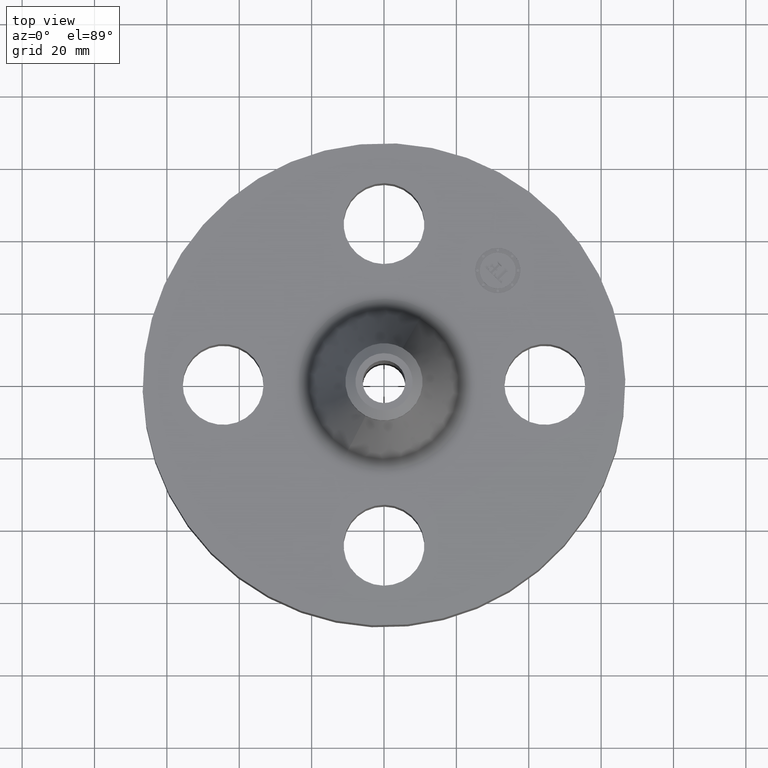
[diagram: clean part render]
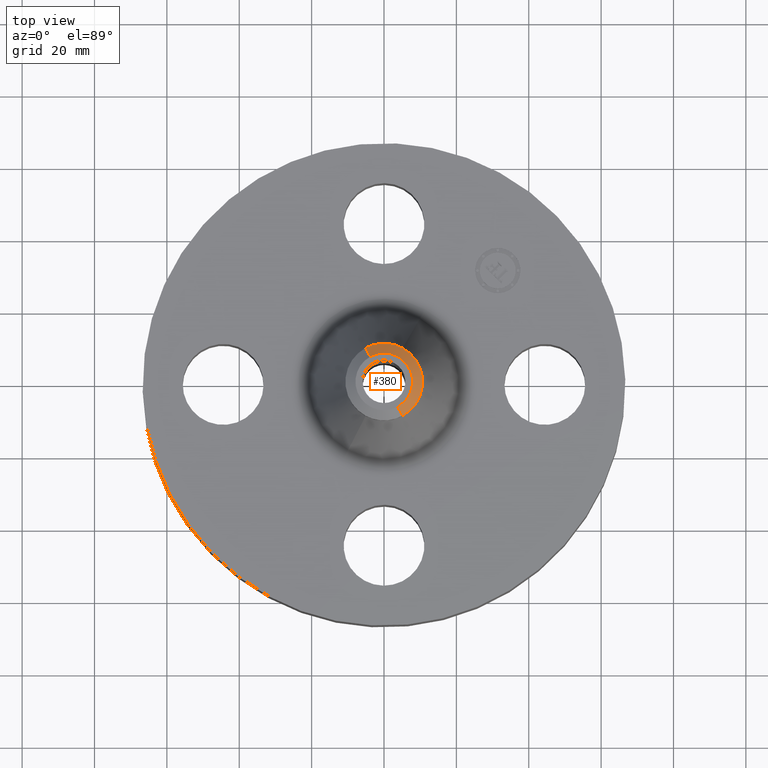
[diagram: same view with one face highlighted and labeled with its STEP entity id]
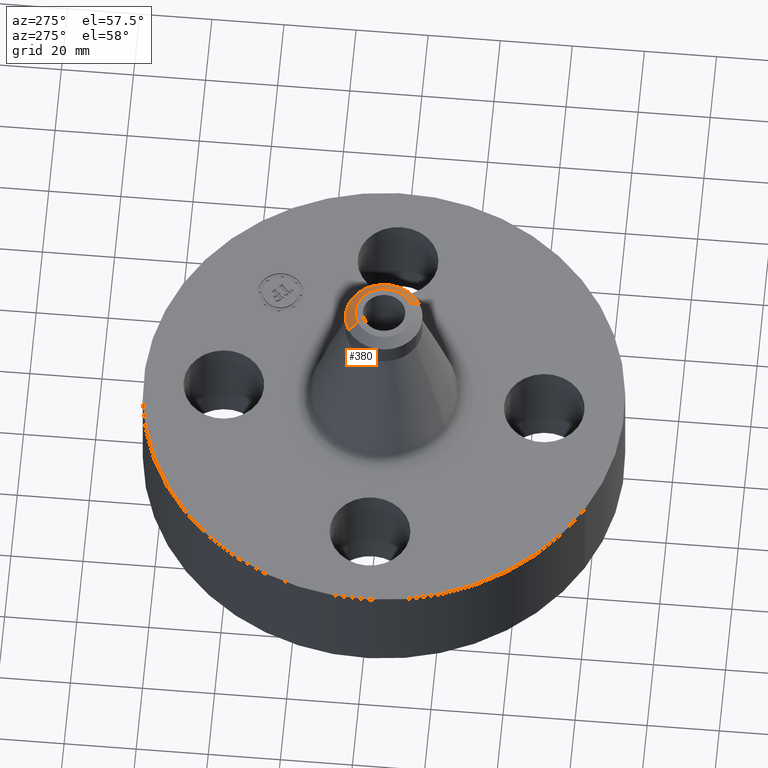
[diagram: same view with one face highlighted and labeled with its STEP entity id]
A machine part, top view. The second image highlights one B-rep face of the part: STEP entity #380.
A second angle (auxiliary view) of the same face is appended — the face is thin or edge-on in the first view.
In plain terms, the highlighted conical surface has half-angle 52.5 deg.
Its self-contained STEP definition (entity closure, byte-faithful):
#270=AXIS2_PLACEMENT_3D('Circle Axis2P3D',#268,#269,$) ;
#297=AXIS2_PLACEMENT_3D('Circle Axis2P3D',#295,#296,$) ;
#311=AXIS2_PLACEMENT_3D('Cone Axis2P3D',#308,#309,#310) ;
#347=AXIS2_PLACEMENT_3D('Circle Axis2P3D',#345,#346,$) ;
#265=CARTESIAN_POINT('Vertex',(0.201358726215,0.368584675995,2.79616197414)) ;
#268=CARTESIAN_POINT('Axis2P3D Location',(0.,0.,2.79616197414)) ;
#272=CARTESIAN_POINT('Vertex',(0.201358726215,-0.368584675995,2.79616197414)) ;
#292=CARTESIAN_POINT('Vertex',(-0.201358726215,0.368584675995,2.79616197414)) ;
#295=CARTESIAN_POINT('Axis2P3D Location',(0.,0.,2.79616197414)) ;
#308=CARTESIAN_POINT('Axis2P3D Location',(0.,0.,2.88000000001)) ;
#313=CARTESIAN_POINT('Line Origine',(0.17516774679,-0.32064240974,2.83808098708)) ;
#317=CARTESIAN_POINT('Vertex',(0.148976767366,-0.272700143485,2.88000000001)) ;
#324=CARTESIAN_POINT('Vertex',(-0.148976767366,0.272700143485,2.88000000001)) ;
#327=CARTESIAN_POINT('Line Origine',(-0.17516774679,0.32064240974,2.83808098708)) ;
#345=CARTESIAN_POINT('Axis2P3D Location',(0.,0.,2.88000000001)) ;
#269=DIRECTION('Axis2P3D Direction',(0.,0.,-0.0393700787402)) ;
#296=DIRECTION('Axis2P3D Direction',(0.,0.,-0.0393700787402)) ;
#309=DIRECTION('Axis2P3D Direction',(-0.,-0.,-0.0393700787402)) ;
#310=DIRECTION('Axis2P3D XDirection',(-0.0188750212049,0.0345504945626,0.)) ;
#314=DIRECTION('Vector Direction',(0.014974561121,-0.02741075027,-0.023966985394)) ;
#328=DIRECTION('Vector Direction',(-0.014974561121,0.02741075027,-0.023966985394)) ;
#346=DIRECTION('Axis2P3D Direction',(0.,0.,-0.0393700787402)) ;
#315=VECTOR('Line Direction',#314,0.0393700787402) ;
#329=VECTOR('Line Direction',#328,0.0393700787402) ;
#374=ORIENTED_EDGE('',*,*,#331,.F.) ;
#375=ORIENTED_EDGE('',*,*,#349,.F.) ;
#376=ORIENTED_EDGE('',*,*,#319,.T.) ;
#377=ORIENTED_EDGE('',*,*,#274,.T.) ;
#378=ORIENTED_EDGE('',*,*,#299,.F.) ;
#380=ADVANCED_FACE('PartBody',(#379),#312,.T.) ;
#271=CIRCLE('generated circle',#270,0.420000000002) ;
#298=CIRCLE('generated circle',#297,0.420000000002) ;
#348=CIRCLE('generated circle',#347,0.310740157481) ;
#312=CONICAL_SURFACE('Cone',#311,0.310740157481,0.916297857297) ;
#274=EDGE_CURVE('',#273,#266,#271,.F.) ;
#299=EDGE_CURVE('',#293,#266,#298,.T.) ;
#319=EDGE_CURVE('',#318,#273,#316,.T.) ;
#331=EDGE_CURVE('',#325,#293,#330,.T.) ;
#349=EDGE_CURVE('',#318,#325,#348,.F.) ;
#373=EDGE_LOOP('',(#374,#375,#376,#377,#378)) ;
#379=FACE_OUTER_BOUND('',#373,.T.) ;
#316=LINE('Line',#313,#315) ;
#330=LINE('Line',#327,#329) ;
#266=VERTEX_POINT('',#265) ;
#273=VERTEX_POINT('',#272) ;
#293=VERTEX_POINT('',#292) ;
#318=VERTEX_POINT('',#317) ;
#325=VERTEX_POINT('',#324) ;